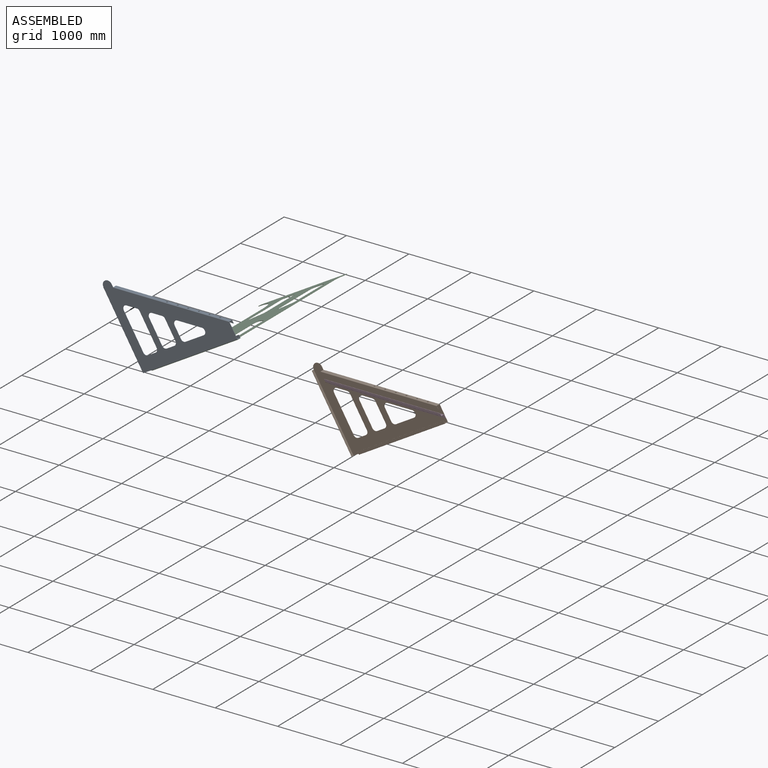
[diagram: assembled view]
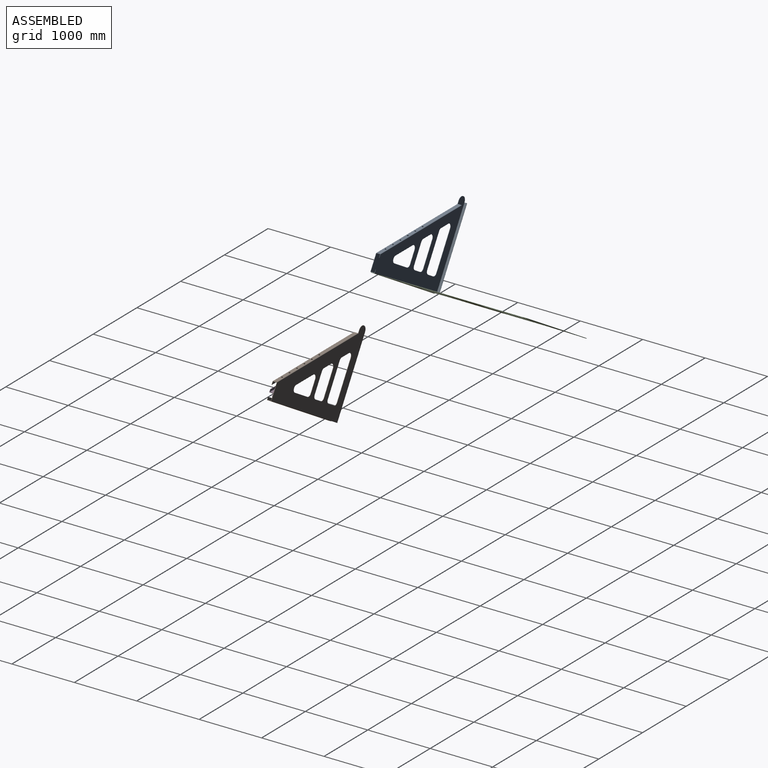
[diagram: assembled view, second angle]
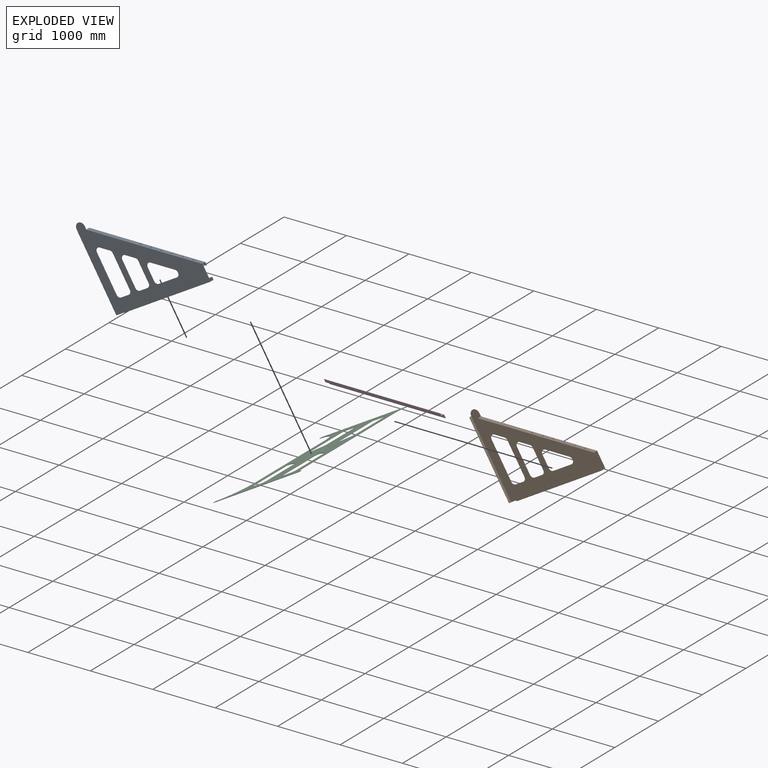
[diagram: exploded view]
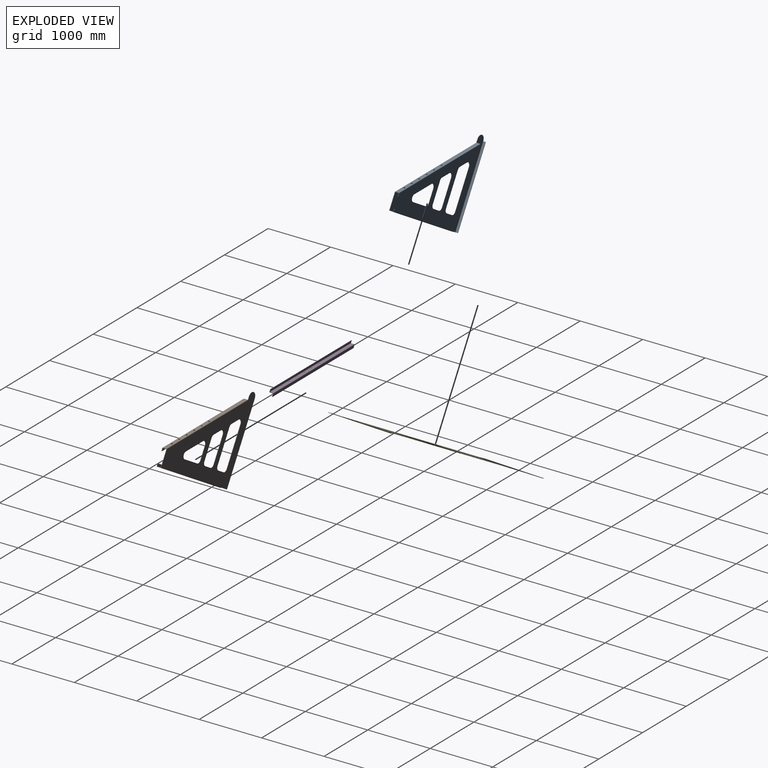
[diagram: exploded view, second angle]
ASSEMBLY  parts=4 mates=2
PART A: 97 faces, bbox 1330x1757.6x70 mm
  f0: plane 150x5mm, normal (-1,0,0), area 750mm2, adj f11,f16,f17,f68
  f1: plane 615.78x5mm, normal (0,1,0), area 3078.9mm2, adj f16,f17,f23,f24
  f2: plane 140x5mm, normal (1,0,0), area 700mm2, adj f16,f17,f24,f25
  f3: plane 532.66x5mm, normal (0,-1,0), area 2663.3mm2, adj f16,f17,f25,f28
  f4: plane 337.11x200.16mm, normal (-0.86,-0.51,0), area 1960.3mm2, adj f16,f17,f18,f27
  f5: plane 200.16x5mm, normal (0,1,0), area 1000.8mm2, adj f16,f17,f22,f27
  f6: plane 407.97x5mm, normal (0,1,0), area 2039.8mm2, adj f16,f17,f21,f26
  f7: plane 140x5mm, normal (1,0,0), area 700mm2, adj f16,f17,f20,f21
  f8: plane 324.84x5mm, normal (0,-1,0), area 1624.2mm2, adj f16,f17,f19,f20
  f9: plane 50.01x5mm, normal (0,1,0), area 250.1mm2, adj f12,f16,f17,f93
  f10: plane 249.98x5mm, normal (0,1,0), area 1249.9mm2, adj f16,f17,f69,f94
  f11: plane 5x0.04mm, normal (-1,0,0), area 0.2mm2, adj f0,f16,f17,f29
  f12: cylinder r=75mm len=150mm, axis (0,0,1), area 1178.1mm2, adj f9,f16,f17,f35
  f13: plane 140x83.13mm, normal (-0.86,-0.51,0), area 814.1mm2, adj f16,f17,f19,f26
  f14: plane 337.11x5mm, normal (1,0,0), area 1685.5mm2, adj f16,f17,f18,f22
  f15: plane 140x83.13mm, normal (-0.86,-0.51,0), area 814.1mm2, adj f16,f17,f23,f28
  f16: plane 1750x1324.99mm, normal (0,0,1), area 974461.1mm2, adj f0,f1,f2,f3,f4,f5,f6,f7
  f17: plane 1750x1324.99mm, normal (0,0,-1), area 974461.1mm2, adj f0,f1,f2,f3,f4,f5,f6,f7
  f18: cylinder r=55mm len=102.29mm, axis (0,0,1), area 716.6mm2, adj f4,f14,f16,f17
  f19: cylinder r=55mm len=47.29mm, axis (0,0,-1), area 284.6mm2, adj f8,f13,f16,f17
  f20: cylinder r=55mm len=55mm, axis (0,0,-1), area 432mm2, adj f7,f8,f16,f17
  f21: cylinder r=55mm len=55mm, axis (0,0,1), area 432mm2, adj f6,f7,f16,f17
  f22: cylinder r=55mm len=55mm, axis (0,0,1), area 432mm2, adj f5,f14,f16,f17
  f23: cylinder r=55mm len=83.08mm, axis (0,0,1), area 579.3mm2, adj f1,f15,f16,f17
  f24: cylinder r=55mm len=55mm, axis (0,0,1), area 432mm2, adj f1,f2,f16,f17
  f25: cylinder r=55mm len=55mm, axis (0,0,-1), area 432mm2, adj f2,f3,f16,f17
  f26: cylinder r=55mm len=83.08mm, axis (0,0,1), area 579.3mm2, adj f6,f13,f16,f17
  f27: cylinder r=55mm len=83.08mm, axis (0,0,-1), area 579.3mm2, adj f4,f5,f16,f17
  f28: cylinder r=55mm len=47.29mm, axis (0,0,-1), area 284.6mm2, adj f3,f15,f16,f17
  f29: plane 5x0.01mm, normal (0,1,0), area 0mm2, adj f11,f36,f37,f38
  f30: plane 1250x5mm, normal (0,0,1), area 6250mm2, adj f31,f32,f33,f34
  f31: plane 39.99x5mm, normal (1,0,0), area 199.9mm2, adj f30,f33,f34,f35
  f32: plane 39.99x5mm, normal (-1,0,0), area 199.9mm2, adj f30,f33,f34,f36
  f33: plane 1250x39.99mm, normal (0,1,0), area 49987.5mm2, adj f30,f31,f32,f38
  f34: plane 1250x39.99mm, normal (0,-1,0), area 49987.5mm2, adj f30,f31,f32,f37
  f35: plane 5.01x5.01mm, normal (1,0,0), area 19.7mm2, adj f12,f16,f31,f37,f38
  f36: plane 5.01x5.01mm, normal (-1,0,0), area 19.7mm2, adj f29,f32,f37,f38
  f37: cylinder r=5.01mm len=1250mm, axis (1,0,0), area 9837.1mm2, adj f17,f29,f34,f35,f36
  f38: cylinder r=0.01mm len=1250mm, axis (1,0,0), area 19.6mm2, adj f16,f29,f33,f35,f36
  f39: plane 59.98x5mm, normal (0,1,0), area 299.9mm2, adj f57,f58,f64,f69
  f40: plane 59.98x5mm, normal (0,-1,0), area 299.9mm2, adj f57,f58,f65,f68
  f41: cylinder r=6mm len=12mm, axis (1,0,0), area 188.5mm2, adj f57,f58
  f42: cylinder r=6mm len=12mm, axis (1,0,0), area 188.5mm2, adj f57,f58
  f43: cylinder r=6mm len=12mm, axis (1,0,0), area 188.5mm2, adj f57,f58
  f44: cylinder r=6mm len=12mm, axis (1,0,0), area 188.5mm2, adj f57,f58
  f45: cylinder r=6mm len=12mm, axis (1,0,0), area 188.5mm2, adj f57,f58
  f46: cylinder r=6mm len=12mm, axis (1,0,0), area 188.5mm2, adj f57,f58
  f47: cylinder r=6mm len=12mm, axis (1,0,0), area 188.5mm2, adj f57,f58
  f48: cylinder r=6mm len=12mm, axis (1,0,0), area 188.5mm2, adj f57,f58
  f49: cylinder r=6mm len=12mm, axis (1,0,0), area 188.5mm2, adj f57,f58
  f50: cylinder r=6mm len=12mm, axis (1,0,0), area 188.5mm2, adj f57,f58
  f51: cylinder r=6mm len=12mm, axis (1,0,0), area 188.5mm2, adj f57,f58
  f52: cylinder r=6mm len=12mm, axis (1,0,0), area 188.5mm2, adj f57,f58
  f53: cylinder r=6mm len=12mm, axis (1,0,0), area 188.5mm2, adj f57,f58
  f54: cylinder r=6mm len=12mm, axis (1,0,0), area 188.5mm2, adj f57,f58
  f55: cylinder r=6mm len=12mm, axis (1,0,0), area 188.5mm2, adj f57,f58
  f56: cylinder r=6mm len=12mm, axis (1,0,0), area 188.5mm2, adj f57,f58
  f57: plane 1599.95x59.98mm, normal (1,0,0), area 94155.4mm2, adj f39,f40,f41,f42,f43,f44,f45,f46
  f58: plane 1599.95x59.98mm, normal (-1,0,0), area 94155.4mm2, adj f39,f40,f41,f42,f43,f44,f45,f46
  f59: plane 1599.95x5mm, normal (1,0,0), area 7999.8mm2, adj f60,f61,f62,f63
  f60: plane 39.99x5mm, normal (0,-1,0), area 200mm2, adj f59,f62,f63,f65
  f61: plane 39.99x5mm, normal (0,1,0), area 200mm2, adj f59,f62,f63,f64
  f62: plane 1599.95x39.99mm, normal (0,0,-1), area 63982mm2, adj f59,f60,f61,f67
  f63: plane 1599.95x39.99mm, normal (0,0,1), area 63982mm2, adj f59,f60,f61,f66
  f64: plane 5.01x5.01mm, normal (0,1,0), area 19.7mm2, adj f39,f61,f66,f67
  f65: plane 5.01x5.01mm, normal (0,-1,0), area 19.7mm2, adj f40,f60,f66,f67
  f66: cylinder r=5.01mm len=1599.95mm, axis (0,1,0), area 12591.1mm2, adj f58,f63,f64,f65
  f67: cylinder r=0.01mm len=1599.95mm, axis (0,1,0), area 25.1mm2, adj f57,f62,f64,f65
  f68: plane 5.01x5.01mm, normal (0,-1,0), area 19.7mm2, adj f0,f40,f70,f71
  f69: plane 5.01x5.01mm, normal (0,1,0), area 19.7mm2, adj f10,f39,f70,f71
  f70: cylinder r=5.01mm len=1599.95mm, axis (0,-1,0), area 12591.1mm2, adj f17,f58,f68,f69
  f71: cylinder r=0.01mm len=1599.95mm, axis (0,-1,0), area 25.1mm2, adj f16,f57,f68,f69
  f72: plane 4.3x2.56mm, normal (0,0,-1), area 0mm2, adj f80,f81,f82,f93
  f73: plane 59.98x4.3mm, normal (-0.51,0.86,0), area 299.9mm2, adj f81,f82,f90,f94
  f74: cylinder r=12.5mm len=25mm, axis (-0.86,-0.51,0), area 392.7mm2, adj f81,f82
  f75: cylinder r=12.5mm len=25mm, axis (-0.86,-0.51,0), area 392.7mm2, adj f81,f82
  f76: cylinder r=12.5mm len=25mm, axis (-0.86,-0.51,0), area 392.7mm2, adj f81,f82
  f77: cylinder r=12.5mm len=25mm, axis (-0.86,-0.51,0), area 392.7mm2, adj f81,f82
  f78: cylinder r=12.5mm len=25mm, axis (-0.86,-0.51,0), area 392.7mm2, adj f81,f82
  f79: cylinder r=12.5mm len=25mm, axis (-0.86,-0.51,0), area 392.7mm2, adj f81,f82
  f80: plane 59.98x4.3mm, normal (0.51,-0.86,0), area 299.9mm2, adj f72,f81,f82,f89
  f81: plane 1600x950mm, normal (-0.86,-0.51,0), area 108664.3mm2, adj f72,f73,f74,f75,f76,f77,f78,f79
  f82: plane 1600x950mm, normal (0.86,0.51,0), area 108664.3mm2, adj f72,f73,f74,f75,f76,f77,f78,f79
  f83: plane 5x0.01mm, normal (0.86,0.51,0), area 0mm2, adj f85,f87,f88,f89
  f84: plane 46.51x5mm, normal (0,1,0), area 232.5mm2, adj f86,f87,f88,f90
  f85: plane 46.51x5mm, normal (0,-1,0), area 232.5mm2, adj f83,f86,f87,f88
  f86: plane 1600.01x950.01mm, normal (-0.86,-0.51,0), area 9304mm2, adj f84,f85,f87,f88
  f87: plane 1600.01x996.51mm, normal (0,0,-1), area 74413mm2, adj f83,f84,f85,f86,f92
  f88: plane 1600.01x996.51mm, normal (0,0,1), area 74413mm2, adj f83,f84,f85,f86,f91
  f89: plane 5.01x4.31mm, normal (0.51,-0.86,0), area 19.7mm2, adj f80,f83,f91,f92
  f90: bspline ~5.01x4.42mm, area 21.4mm2, adj f73,f84,f91,f92
  f91: cylinder r=5.01mm len=1602.56mm, axis (0.51,-0.86,0), area 14640.6mm2, adj f82,f88,f89,f90
  f92: cylinder r=0.01mm len=1600.01mm, axis (0.51,-0.86,0), area 29.2mm2, adj f81,f87,f89,f90
  f93: plane 5.01x4.31mm, normal (0.51,-0.86,0), area 19.7mm2, adj f9,f72,f95,f96
  f94: bspline ~5.01x4.41mm, area 21.4mm2, adj f10,f73,f95,f96
  f95: cylinder r=5.01mm len=1602.56mm, axis (0.51,-0.86,0), area 14640.5mm2, adj f17,f82,f93,f94
  f96: cylinder r=0.01mm len=1600.01mm, axis (0.51,-0.86,0), area 29.2mm2, adj f16,f81,f93,f94
PART B: 97 faces, bbox 1330x1757.6x70 mm
  f0: plane 615.78x5mm, normal (0,1,0), area 3078.9mm2, adj f16,f17,f21,f28
  f1: plane 140x83.13mm, normal (-0.86,-0.51,0), area 814.1mm2, adj f16,f17,f27,f28
  f2: plane 532.66x5mm, normal (0,-1,0), area 2663.3mm2, adj f16,f17,f23,f27
  f3: plane 337.11x5mm, normal (1,0,0), area 1685.5mm2, adj f16,f17,f18,f19
  f4: plane 200.16x5mm, normal (0,1,0), area 1000.8mm2, adj f16,f17,f19,f24
  f5: plane 407.97x5mm, normal (0,1,0), area 2039.8mm2, adj f16,f17,f20,f26
  f6: plane 140x83.13mm, normal (-0.86,-0.51,0), area 814.1mm2, adj f16,f17,f25,f26
  f7: plane 324.84x5mm, normal (0,-1,0), area 1624.2mm2, adj f16,f17,f22,f25
  f8: plane 150x5mm, normal (-1,0,0), area 750mm2, adj f12,f16,f17,f68
  f9: plane 249.98x5mm, normal (0,1,0), area 1249.9mm2, adj f16,f17,f69,f94
  f10: plane 50.01x5mm, normal (0,1,0), area 250.1mm2, adj f11,f16,f17,f93
  f11: cylinder r=75mm len=150mm, axis (0,0,-1), area 1178.1mm2, adj f10,f16,f17,f29
  f12: plane 5x0.04mm, normal (-1,0,0), area 0.2mm2, adj f8,f16,f17,f35
  f13: plane 140x5mm, normal (1,0,0), area 700mm2, adj f16,f17,f20,f22
  f14: plane 337.11x200.16mm, normal (-0.86,-0.51,0), area 1960.3mm2, adj f16,f17,f18,f24
  f15: plane 140x5mm, normal (1,0,0), area 700mm2, adj f16,f17,f21,f23
  f16: plane 1750x1324.99mm, normal (0,0,-1), area 974461.1mm2, adj f0,f1,f2,f3,f4,f5,f6,f7
  f17: plane 1750x1324.99mm, normal (0,0,1), area 974461.1mm2, adj f0,f1,f2,f3,f4,f5,f6,f7
  f18: cylinder r=55mm len=102.29mm, axis (0,0,-1), area 716.6mm2, adj f3,f14,f16,f17
  f19: cylinder r=55mm len=55mm, axis (0,0,-1), area 432mm2, adj f3,f4,f16,f17
  f20: cylinder r=55mm len=55mm, axis (0,0,-1), area 432mm2, adj f5,f13,f16,f17
  f21: cylinder r=55mm len=55mm, axis (0,0,-1), area 432mm2, adj f0,f15,f16,f17
  f22: cylinder r=55mm len=55mm, axis (0,0,1), area 432mm2, adj f7,f13,f16,f17
  f23: cylinder r=55mm len=55mm, axis (0,0,1), area 432mm2, adj f2,f15,f16,f17
  f24: cylinder r=55mm len=83.08mm, axis (0,0,1), area 579.3mm2, adj f4,f14,f16,f17
  f25: cylinder r=55mm len=47.29mm, axis (0,0,1), area 284.6mm2, adj f6,f7,f16,f17
  f26: cylinder r=55mm len=83.08mm, axis (0,0,-1), area 579.3mm2, adj f5,f6,f16,f17
  f27: cylinder r=55mm len=47.29mm, axis (0,0,1), area 284.6mm2, adj f1,f2,f16,f17
  f28: cylinder r=55mm len=83.08mm, axis (0,0,-1), area 579.3mm2, adj f0,f1,f16,f17
  f29: plane 5.01x5.01mm, normal (1,0,0), area 19.7mm2, adj f11,f16,f32,f37,f38
  f30: plane 1250x5mm, normal (0,0,-1), area 6250mm2, adj f31,f32,f33,f34
  f31: plane 39.99x5mm, normal (-1,0,0), area 199.9mm2, adj f30,f33,f34,f36
  f32: plane 39.99x5mm, normal (1,0,0), area 199.9mm2, adj f29,f30,f33,f34
  f33: plane 1250x39.99mm, normal (0,1,0), area 49987.5mm2, adj f30,f31,f32,f38
  f34: plane 1250x39.99mm, normal (0,-1,0), area 49987.5mm2, adj f30,f31,f32,f37
  f35: plane 5x0.01mm, normal (0,1,0), area 0mm2, adj f12,f36,f37,f38
  f36: plane 5.01x5.01mm, normal (-1,0,0), area 19.7mm2, adj f31,f35,f37,f38
  f37: cylinder r=5.01mm len=1250mm, axis (1,0,0), area 9837.1mm2, adj f17,f29,f34,f35,f36
  f38: cylinder r=0.01mm len=1250mm, axis (1,0,0), area 19.6mm2, adj f16,f29,f33,f35,f36
  f39: plane 59.98x5mm, normal (0,1,0), area 299.9mm2, adj f57,f58,f64,f69
  f40: plane 59.98x5mm, normal (0,-1,0), area 299.9mm2, adj f57,f58,f65,f68
  f41: cylinder r=6mm len=12mm, axis (1,0,0), area 188.5mm2, adj f57,f58
  f42: cylinder r=6mm len=12mm, axis (1,0,0), area 188.5mm2, adj f57,f58
  f43: cylinder r=6mm len=12mm, axis (1,0,0), area 188.5mm2, adj f57,f58
  f44: cylinder r=6mm len=12mm, axis (1,0,0), area 188.5mm2, adj f57,f58
  f45: cylinder r=6mm len=12mm, axis (1,0,0), area 188.5mm2, adj f57,f58
  f46: cylinder r=6mm len=12mm, axis (1,0,0), area 188.5mm2, adj f57,f58
  f47: cylinder r=6mm len=12mm, axis (1,0,0), area 188.5mm2, adj f57,f58
  f48: cylinder r=6mm len=12mm, axis (1,0,0), area 188.5mm2, adj f57,f58
  f49: cylinder r=6mm len=12mm, axis (1,0,0), area 188.5mm2, adj f57,f58
  f50: cylinder r=6mm len=12mm, axis (1,0,0), area 188.5mm2, adj f57,f58
  f51: cylinder r=6mm len=12mm, axis (1,0,0), area 188.5mm2, adj f57,f58
  f52: cylinder r=6mm len=12mm, axis (1,0,0), area 188.5mm2, adj f57,f58
  f53: cylinder r=6mm len=12mm, axis (1,0,0), area 188.5mm2, adj f57,f58
  f54: cylinder r=6mm len=12mm, axis (1,0,0), area 188.5mm2, adj f57,f58
  f55: cylinder r=6mm len=12mm, axis (1,0,0), area 188.5mm2, adj f57,f58
  f56: cylinder r=6mm len=12mm, axis (1,0,0), area 188.5mm2, adj f57,f58
  f57: plane 1599.95x59.98mm, normal (1,0,0), area 94155.4mm2, adj f39,f40,f41,f42,f43,f44,f45,f46
  f58: plane 1599.95x59.98mm, normal (-1,0,0), area 94155.4mm2, adj f39,f40,f41,f42,f43,f44,f45,f46
  f59: plane 1599.95x5mm, normal (1,0,0), area 7999.8mm2, adj f60,f61,f62,f63
  f60: plane 39.99x5mm, normal (0,1,0), area 200mm2, adj f59,f62,f63,f64
  f61: plane 39.99x5mm, normal (0,-1,0), area 200mm2, adj f59,f62,f63,f65
  f62: plane 1599.95x39.99mm, normal (0,0,1), area 63982mm2, adj f59,f60,f61,f67
  f63: plane 1599.95x39.99mm, normal (0,0,-1), area 63982mm2, adj f59,f60,f61,f66
  f64: plane 5.01x5.01mm, normal (0,1,0), area 19.7mm2, adj f39,f60,f66,f67
  f65: plane 5.01x5.01mm, normal (0,-1,0), area 19.7mm2, adj f40,f61,f66,f67
  f66: cylinder r=5.01mm len=1599.95mm, axis (0,1,0), area 12591.1mm2, adj f58,f63,f64,f65
  f67: cylinder r=0.01mm len=1599.95mm, axis (0,1,0), area 25.1mm2, adj f57,f62,f64,f65
  f68: plane 5.01x5.01mm, normal (0,-1,0), area 19.7mm2, adj f8,f40,f70,f71
  f69: plane 5.01x5.01mm, normal (0,1,0), area 19.7mm2, adj f9,f39,f70,f71
  f70: cylinder r=5.01mm len=1599.95mm, axis (0,-1,0), area 12591.1mm2, adj f17,f58,f68,f69
  f71: cylinder r=0.01mm len=1599.95mm, axis (0,-1,0), area 25.1mm2, adj f16,f57,f68,f69
  f72: plane 59.98x4.3mm, normal (0.51,-0.86,0), area 299.9mm2, adj f73,f81,f82,f89
  f73: plane 4.3x2.56mm, normal (0,0,1), area 0mm2, adj f72,f81,f82,f93
  f74: cylinder r=12.5mm len=25mm, axis (-0.86,-0.51,0), area 392.7mm2, adj f81,f82
  f75: cylinder r=12.5mm len=25mm, axis (-0.86,-0.51,0), area 392.7mm2, adj f81,f82
  f76: cylinder r=12.5mm len=25mm, axis (-0.86,-0.51,0), area 392.7mm2, adj f81,f82
  f77: cylinder r=12.5mm len=25mm, axis (-0.86,-0.51,0), area 392.7mm2, adj f81,f82
  f78: cylinder r=12.5mm len=25mm, axis (-0.86,-0.51,0), area 392.7mm2, adj f81,f82
  f79: cylinder r=12.5mm len=25mm, axis (-0.86,-0.51,0), area 392.7mm2, adj f81,f82
  f80: plane 59.98x4.3mm, normal (-0.51,0.86,0), area 299.9mm2, adj f81,f82,f90,f94
  f81: plane 1600x950mm, normal (-0.86,-0.51,0), area 108664.3mm2, adj f72,f73,f74,f75,f76,f77,f78,f79
  f82: plane 1600x950mm, normal (0.86,0.51,0), area 108664.3mm2, adj f72,f73,f74,f75,f76,f77,f78,f79
  f83: plane 5x0.01mm, normal (0.86,0.51,0), area 0mm2, adj f86,f87,f88,f89
  f84: plane 46.51x5mm, normal (0,1,0), area 232.5mm2, adj f85,f87,f88,f90
  f85: plane 1600.01x950.01mm, normal (-0.86,-0.51,0), area 9304mm2, adj f84,f86,f87,f88
  f86: plane 46.51x5mm, normal (0,-1,0), area 232.5mm2, adj f83,f85,f87,f88
  f87: plane 1600.01x996.51mm, normal (0,0,1), area 74413mm2, adj f83,f84,f85,f86,f92
  f88: plane 1600.01x996.51mm, normal (0,0,-1), area 74413mm2, adj f83,f84,f85,f86,f91
  f89: plane 5.01x4.31mm, normal (0.51,-0.86,0), area 19.7mm2, adj f72,f83,f91,f92
  f90: bspline ~5.01x4.41mm, area 21.4mm2, adj f80,f84,f91,f92
  f91: cylinder r=5.01mm len=1602.56mm, axis (0.51,-0.86,0), area 14640.6mm2, adj f82,f88,f89,f90
  f92: cylinder r=0.01mm len=1600.01mm, axis (0.51,-0.86,0), area 29.2mm2, adj f81,f87,f89,f90
  f93: plane 5.01x4.31mm, normal (0.51,-0.86,0), area 19.7mm2, adj f10,f73,f95,f96
  f94: bspline ~5.01x4.42mm, area 21.4mm2, adj f9,f80,f95,f96
  f95: cylinder r=5.01mm len=1602.56mm, axis (0.51,-0.86,0), area 14640.5mm2, adj f17,f82,f93,f94
  f96: cylinder r=0.01mm len=1600.01mm, axis (0.51,-0.86,0), area 29.2mm2, adj f16,f81,f93,f94
PART C: 78 faces, bbox 1600x2490x6 mm
  f0: plane 631.75x6mm, normal (-1,0,0), area 3790.5mm2, adj f60,f61,f69,f73
  f1: plane 140x83.44mm, normal (-0.51,-0.86,0), area 977.9mm2, adj f60,f61,f70,f73
  f2: plane 715.19x6mm, normal (1,0,0), area 4291.2mm2, adj f60,f61,f63,f70
  f3: plane 140x83.44mm, normal (-0.51,0.86,0), area 977.9mm2, adj f60,f61,f62,f66
  f4: plane 631.75x6mm, normal (-1,0,0), area 3790.5mm2, adj f60,f61,f66,f75
  f5: plane 140x6mm, normal (0,-1,0), area 840mm2, adj f60,f61,f71,f75
  f6: plane 2170x6mm, normal (1,0,0), area 13020mm2, adj f7,f57,f60,f61
  f7: cylinder r=100mm len=100mm, axis (0,0,-1), area 942.5mm2, adj f6,f8,f60,f61
  f8: plane 60x6mm, normal (1,0,0), area 360mm2, adj f7,f9,f60,f61
  f9: plane 1600x6mm, normal (0,-1,0), area 9600mm2, adj f8,f10,f60,f61
  f10: plane 60x6mm, normal (-1,0,0), area 360mm2, adj f9,f11,f60,f61
  f11: cylinder r=400mm len=400mm, axis (0,0,-1), area 3769.9mm2, adj f10,f12,f60,f61
  f12: plane 1570x6mm, normal (-1,0,0), area 9420mm2, adj f11,f13,f60,f61
  f13: cylinder r=400mm len=400mm, axis (0,0,-1), area 3769.9mm2, adj f12,f14,f60,f61
  f14: plane 60x6mm, normal (-1,0,0), area 360mm2, adj f13,f15,f60,f61
  f15: plane 1600x6mm, normal (0,1,0), area 9600mm2, adj f14,f16,f60,f61
  f16: plane 60x6mm, normal (1,0,0), area 360mm2, adj f15,f57,f60,f61
  f17: plane 140x6mm, normal (0,1,0), area 840mm2, adj f60,f61,f64,f68
  f18: plane 631.75x6mm, normal (-1,0,0), area 3790.5mm2, adj f60,f61,f65,f68
  f19: plane 140x83.44mm, normal (-0.51,-0.86,0), area 977.9mm2, adj f60,f61,f65,f67
  f20: plane 140x83.44mm, normal (-0.51,0.86,0), area 977.9mm2, adj f60,f61,f72,f74
  f21: plane 631.75x6mm, normal (-1,0,0), area 3790.5mm2, adj f60,f61,f74,f77
  f22: plane 140x6mm, normal (0,-1,0), area 840mm2, adj f60,f61,f76,f77
  f23: plane 715.19x6mm, normal (1,0,0), area 4291.2mm2, adj f60,f61,f72,f76
  f24: plane 715.19x6mm, normal (1,0,0), area 4291.2mm2, adj f60,f61,f64,f67
  f25: cylinder r=6mm len=12mm, axis (0,0,-1), area 226.2mm2, adj f60,f61
  f26: cylinder r=6mm len=12mm, axis (0,0,-1), area 226.2mm2, adj f60,f61
  f27: cylinder r=6mm len=12mm, axis (0,0,-1), area 226.2mm2, adj f60,f61
  f28: cylinder r=6mm len=12mm, axis (0,0,-1), area 226.2mm2, adj f60,f61
  f29: cylinder r=6mm len=12mm, axis (0,0,-1), area 226.2mm2, adj f60,f61
  f30: cylinder r=6mm len=12mm, axis (0,0,-1), area 226.2mm2, adj f60,f61
  f31: cylinder r=6mm len=12mm, axis (0,0,-1), area 226.2mm2, adj f60,f61
  f32: cylinder r=6mm len=12mm, axis (0,0,-1), area 226.2mm2, adj f60,f61
  f33: cylinder r=6mm len=12mm, axis (0,0,-1), area 226.2mm2, adj f60,f61
  f34: cylinder r=6mm len=12mm, axis (0,0,-1), area 226.2mm2, adj f60,f61
  f35: cylinder r=6mm len=12mm, axis (0,0,-1), area 226.2mm2, adj f60,f61
  f36: cylinder r=6mm len=12mm, axis (0,0,-1), area 226.2mm2, adj f60,f61
  f37: cylinder r=6mm len=12mm, axis (0,0,-1), area 226.2mm2, adj f60,f61
  f38: cylinder r=6mm len=12mm, axis (0,0,-1), area 226.2mm2, adj f60,f61
  f39: cylinder r=6mm len=12mm, axis (0,0,-1), area 226.2mm2, adj f60,f61
  f40: cylinder r=6mm len=12mm, axis (0,0,-1), area 226.2mm2, adj f60,f61
  f41: cylinder r=6mm len=12mm, axis (0,0,-1), area 226.2mm2, adj f60,f61
  f42: cylinder r=6mm len=12mm, axis (0,0,-1), area 226.2mm2, adj f60,f61
  f43: cylinder r=6mm len=12mm, axis (0,0,-1), area 226.2mm2, adj f60,f61
  f44: cylinder r=6mm len=12mm, axis (0,0,-1), area 226.2mm2, adj f60,f61
  f45: cylinder r=6mm len=12mm, axis (0,0,-1), area 226.2mm2, adj f60,f61
  f46: cylinder r=6mm len=12mm, axis (0,0,-1), area 226.2mm2, adj f60,f61
  f47: cylinder r=6mm len=12mm, axis (0,0,-1), area 226.2mm2, adj f60,f61
  f48: cylinder r=6mm len=12mm, axis (0,0,-1), area 226.2mm2, adj f60,f61
  f49: cylinder r=6mm len=12mm, axis (0,0,-1), area 226.2mm2, adj f60,f61
  f50: cylinder r=6mm len=12mm, axis (0,0,-1), area 226.2mm2, adj f60,f61
  f51: cylinder r=6mm len=12mm, axis (0,0,-1), area 226.2mm2, adj f60,f61
  f52: cylinder r=6mm len=12mm, axis (0,0,-1), area 226.2mm2, adj f60,f61
  f53: cylinder r=6mm len=12mm, axis (0,0,-1), area 226.2mm2, adj f60,f61
  f54: cylinder r=6mm len=12mm, axis (0,0,-1), area 226.2mm2, adj f60,f61
  f55: cylinder r=6mm len=12mm, axis (0,0,-1), area 226.2mm2, adj f60,f61
  f56: cylinder r=6mm len=12mm, axis (0,0,-1), area 226.2mm2, adj f60,f61
  f57: cylinder r=100mm len=100mm, axis (0,0,-1), area 942.5mm2, adj f6,f16,f60,f61
  f58: plane 715.19x6mm, normal (1,0,0), area 4291.2mm2, adj f60,f61,f62,f71
  f59: plane 140x6mm, normal (0,1,0), area 840mm2, adj f60,f61,f63,f69
  f60: plane 2490x1600mm, normal (0,0,-1), area 2090204.4mm2, adj f0,f1,f2,f3,f4,f5,f6,f7
  f61: plane 2490x1600mm, normal (0,0,1), area 2090204.4mm2, adj f0,f1,f2,f3,f4,f5,f6,f7
  f62: cylinder r=55mm len=83.16mm, axis (0,0,1), area 695.7mm2, adj f3,f58,f60,f61
  f63: cylinder r=55mm len=55mm, axis (0,0,1), area 518.4mm2, adj f2,f59,f60,f61
  f64: cylinder r=55mm len=55mm, axis (0,0,1), area 518.4mm2, adj f17,f24,f60,f61
  f65: cylinder r=55mm len=47.25mm, axis (0,0,1), area 341mm2, adj f18,f19,f60,f61
  f66: cylinder r=55mm len=47.25mm, axis (0,0,1), area 341mm2, adj f3,f4,f60,f61
  f67: cylinder r=55mm len=83.16mm, axis (0,0,1), area 695.7mm2, adj f19,f24,f60,f61
  f68: cylinder r=55mm len=55mm, axis (0,0,1), area 518.4mm2, adj f17,f18,f60,f61
  f69: cylinder r=55mm len=55mm, axis (0,0,-1), area 518.4mm2, adj f0,f59,f60,f61
  f70: cylinder r=55mm len=83.16mm, axis (0,0,-1), area 695.7mm2, adj f1,f2,f60,f61
  f71: cylinder r=55mm len=55mm, axis (0,0,1), area 518.4mm2, adj f5,f58,f60,f61
  f72: cylinder r=55mm len=83.16mm, axis (0,0,-1), area 695.7mm2, adj f20,f23,f60,f61
  f73: cylinder r=55mm len=47.25mm, axis (0,0,1), area 341mm2, adj f0,f1,f60,f61
  f74: cylinder r=55mm len=47.25mm, axis (0,0,1), area 341mm2, adj f20,f21,f60,f61
  f75: cylinder r=55mm len=55mm, axis (0,0,1), area 518.4mm2, adj f4,f5,f60,f61
  f76: cylinder r=55mm len=55mm, axis (0,0,1), area 518.4mm2, adj f22,f23,f60,f61
  f77: cylinder r=55mm len=55mm, axis (0,0,-1), area 518.4mm2, adj f21,f22,f60,f61
PART D: 31 faces, bbox 1906.8x66x80 mm
  f0: plane 6x3.57mm, normal (0,0,1), area 21.4mm2, adj f1,f4,f5,f27
  f1: plane 39.99x23.74mm, normal (0.86,0,0.51), area 279mm2, adj f0,f2,f4,f5
  f2: plane 1859.28x6mm, normal (0,0,-1), area 11155.7mm2, adj f1,f3,f4,f5
  f3: plane 39.99x23.74mm, normal (-0.86,0,-0.51), area 279mm2, adj f2,f4,f5,f6
  f4: plane 1883.02x39.99mm, normal (0,1,0), area 74352.5mm2, adj f0,f1,f2,f3,f29
  f5: plane 1883.02x39.99mm, normal (0,-1,0), area 74352.5mm2, adj f0,f1,f2,f3,f30
  f6: plane 6x0.01mm, normal (0,0,-1), area 0mm2, adj f3,f28,f29,f30
  f7: plane 53.99x6.01mm, normal (1,0,0), area 323.9mm2, adj f15,f16,f23,f27
  f8: cylinder r=12.5mm len=25mm, axis (0,0,1), area 471.2mm2, adj f15,f16
  f9: cylinder r=12.5mm len=25mm, axis (0,0,1), area 471.2mm2, adj f15,f16
  f10: cylinder r=12.5mm len=25mm, axis (0,0,1), area 471.2mm2, adj f15,f16
  f11: cylinder r=12.5mm len=25mm, axis (0,0,1), area 471.2mm2, adj f15,f16
  f12: cylinder r=12.5mm len=25mm, axis (0,0,1), area 471.2mm2, adj f15,f16
  f13: cylinder r=12.5mm len=25mm, axis (0,0,1), area 471.2mm2, adj f15,f16
  f14: plane 53.99x6.01mm, normal (-1,0,0), area 324.1mm2, adj f15,f16,f24,f28
  f15: plane 1855.72x53.99mm, normal (0,0,1), area 97226.3mm2, adj f7,f8,f9,f10,f11,f12,f13,f14
  f16: plane 1855.72x53.98mm, normal (0,0,-1), area 97226.3mm2, adj f7,f8,f9,f10,f11,f12,f13,f14
  f17: plane 6.01x3.57mm, normal (0,0,-1), area 21.4mm2, adj f20,f21,f22,f24
  f18: plane 1859.28x6mm, normal (0,0,1), area 11155.7mm2, adj f19,f20,f21,f22
  f19: plane 33.99x20.18mm, normal (0.86,0,0.51), area 237.2mm2, adj f18,f21,f22,f23
  f20: plane 33.99x20.18mm, normal (-0.86,0,-0.51), area 237.2mm2, adj f17,f18,f21,f22
  f21: plane 1879.46x33.99mm, normal (0,1,0), area 63196.9mm2, adj f17,f18,f19,f20,f26
  f22: plane 1879.46x33.99mm, normal (0,-1,0), area 63196.9mm2, adj f17,f18,f19,f20,f25
  f23: plane 6.02x6.02mm, normal (1,0,0), area 28.4mm2, adj f7,f19,f25,f26
  f24: plane 6.01x6.01mm, normal (-1,0,0), area 28.3mm2, adj f14,f17,f25
  f25: cylinder r=6.01mm len=1855.71mm, axis (1,0,0), area 17518.8mm2, adj f16,f22,f23,f24
  f26: cylinder r=0.01mm len=1855.71mm, axis (1,0,0), area 29.1mm2, adj f15,f21,f23
  f27: plane 6.01x6.01mm, normal (1,0,0), area 28.4mm2, adj f0,f7,f29,f30
  f28: plane 6.01x6.01mm, normal (-1,0,0), area 28.4mm2, adj f6,f14,f29,f30
  f29: cylinder r=6.01mm len=1855.72mm, axis (1,0,0), area 17518.9mm2, adj f4,f6,f15,f27,f28
  f30: cylinder r=0.01mm len=1855.72mm, axis (1,0,0), area 29.1mm2, adj f5,f6,f16,f27,f28
PLACE A rot(axis=(-0.37,-0.66,-0.66),139deg) t=(-1669.85,31.02,-178.89)mm
PLACE B rot(axis=(-0.37,-0.66,-0.66),139deg) t=(1338.47,590.65,-764.52)mm
PLACE C rot(axis=(-0.96,0,-0.26),180deg) t=(-1536.12,2526.02,-110.31)mm
PLACE D t=(853.93,534.66,174.34)mm
MATE fastened D.f9 <-> B.f75  axis (0,0,1) through (2374.71,510.65,220.34)mm
MATE fastened C.f56 <-> A.f41  axis (-0.51,0,0.86) through (-202.11,61.02,688.74)mm
